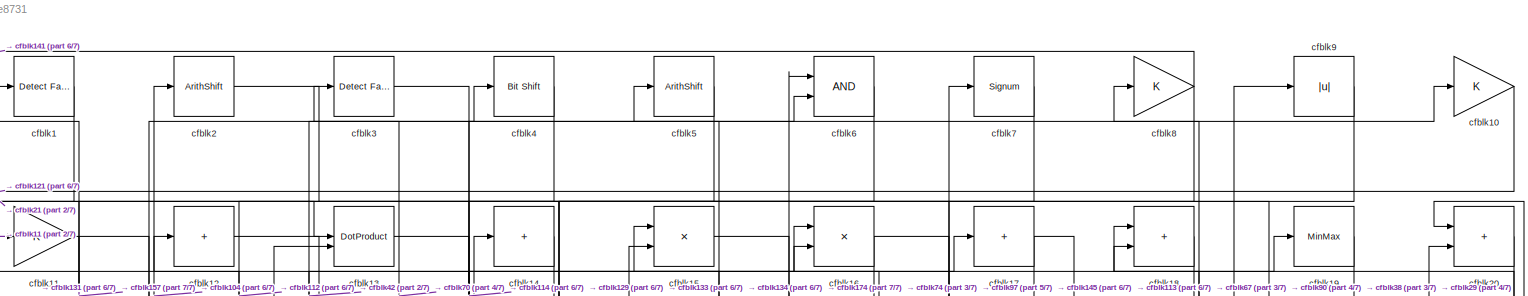
[diagram: root canvas - part 1/7, full width, top band]
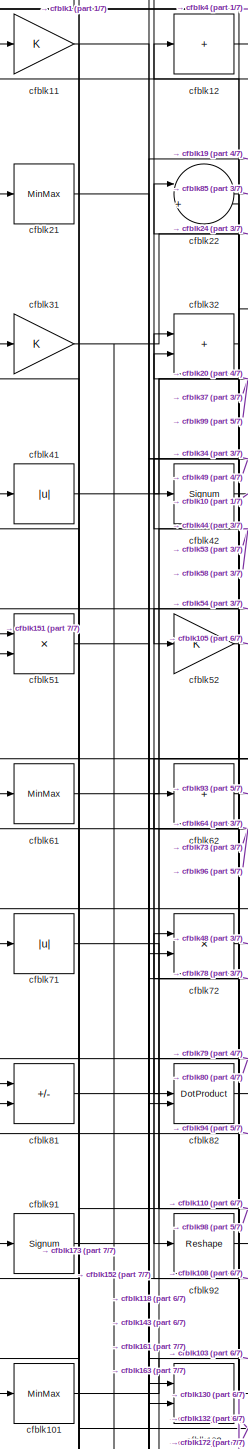
[diagram: root canvas - part 2/7, middle left region]
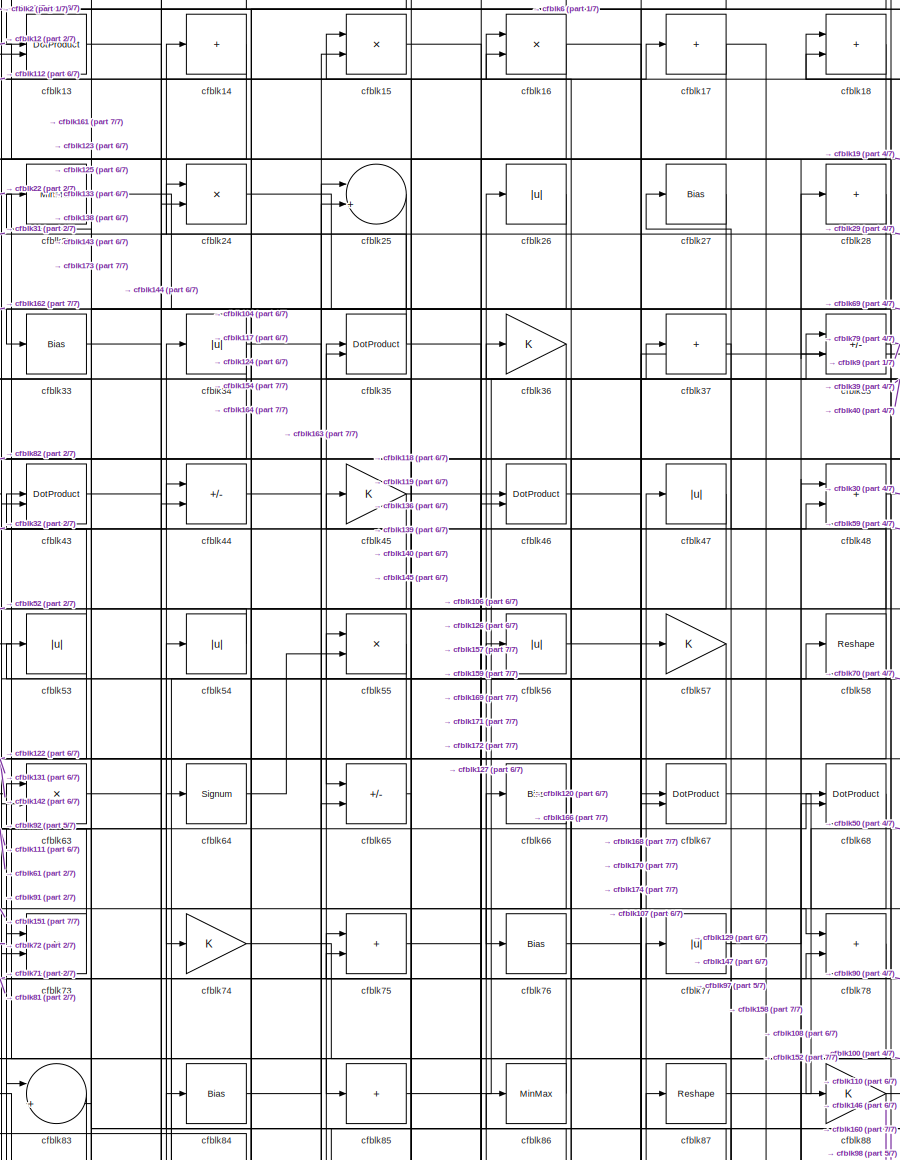
[diagram: root canvas - part 3/7, top center region]
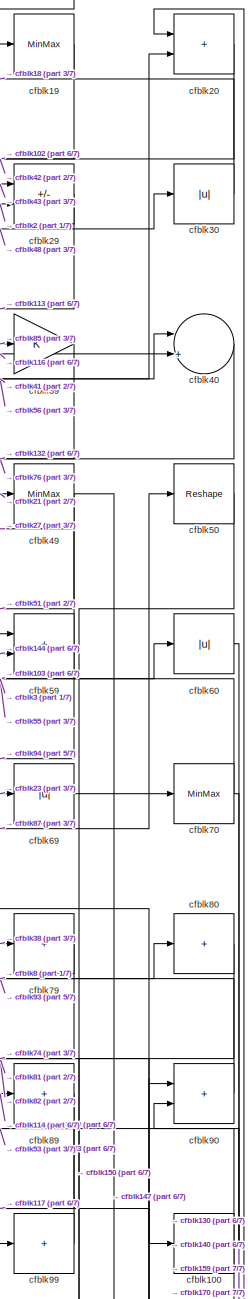
[diagram: root canvas - part 4/7, top right region]
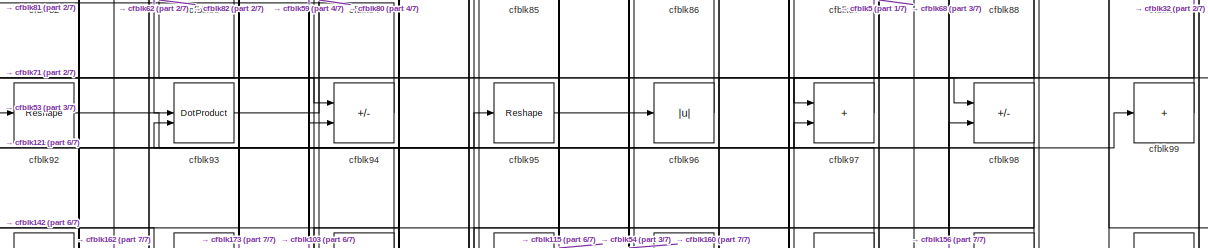
[diagram: root canvas - part 5/7, full width, middle band]
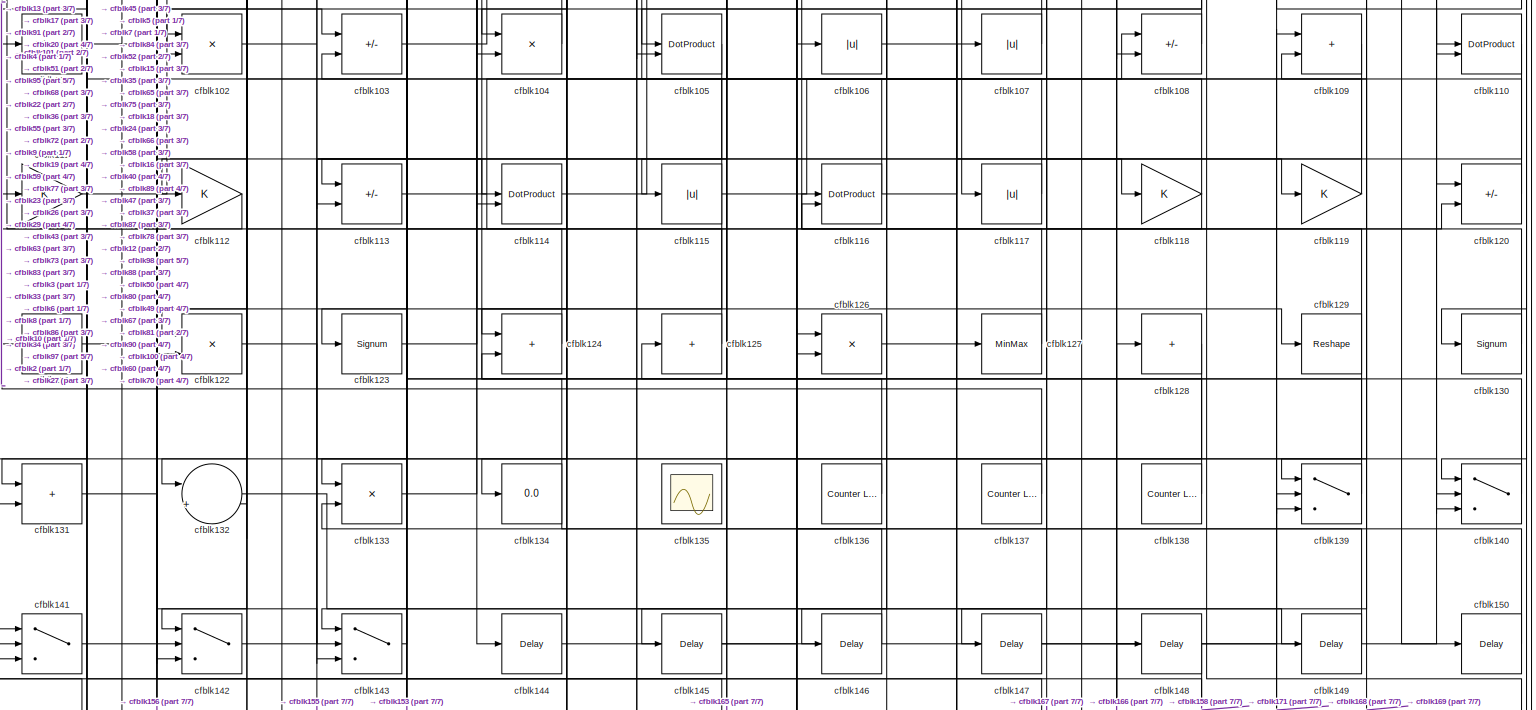
[diagram: root canvas - part 6/7, full width, bottom band]
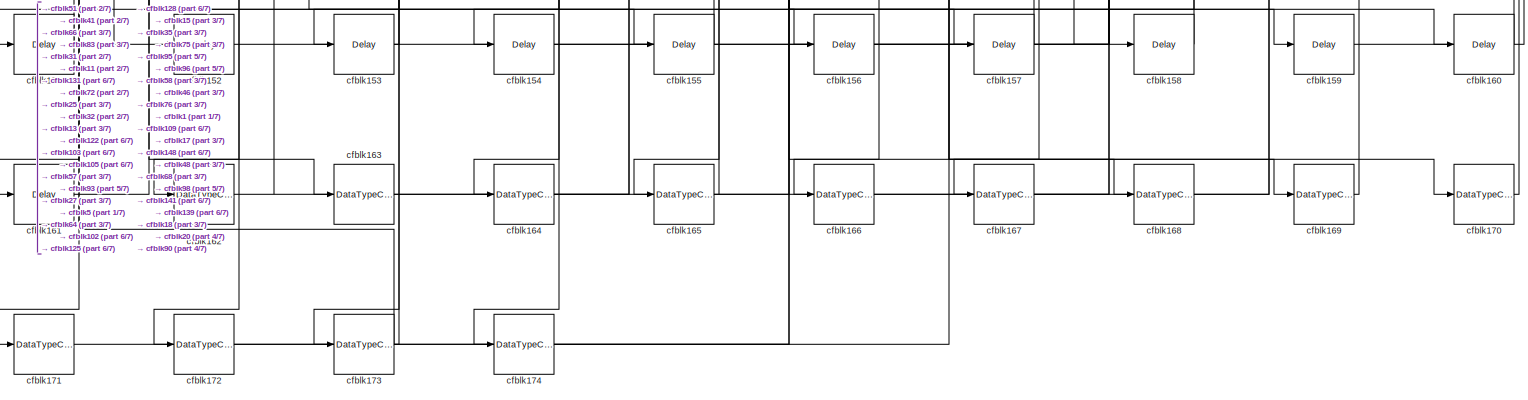
[diagram: root canvas - part 7/7, full width, bottom band]
MODEL slx_33aa2c3e8731
KIND model
CONFIG AbsTol = auto
CONFIG EnableMultiTasking = off
CONFIG FixedStep = auto
CONFIG MaxStep = auto
CONFIG MinStep = auto
CONFIG RelTol = 1e-3
CONFIG SampleTimeConstraint = Unconstrained
CONFIG SolverName = VariableStepAuto
CONFIG StartTime = 0.0
CONFIG StopTime = 10.0
BLOCK [Reference] cfblk1  REF=hdlsllib/Logic and Bit
Operations/Detect Fall
Negative
  SourceBlock = hdlsllib/Logic and Bit\nOperations/Detect Fall\nNegative
  SourceType = Detect Fall Negative
BLOCK [Gain] cfblk10
  OutDataTypeStr = uint8
BLOCK [Sum] cfblk100
  IconShape = rectangular
  Inputs = +
  OutDataTypeStr = uint8
BLOCK [MinMax] cfblk101
  OutDataTypeStr = uint8
BLOCK [Product] cfblk102
  Inputs = */
  OutDataTypeStr = uint8
  RndMeth = Zero
  SaturateOnIntegerOverflow = on
BLOCK [Sum] cfblk103
  IconShape = rectangular
  Inputs = +-
  OutDataTypeStr = uint8
BLOCK [Product] cfblk104
  Inputs = */
  OutDataTypeStr = uint8
  RndMeth = Zero
  SaturateOnIntegerOverflow = on
BLOCK [DotProduct] cfblk105
  OutDataTypeStr = uint8
BLOCK [Abs] cfblk106
  OutDataTypeStr = uint8
  SaturateOnIntegerOverflow = off
BLOCK [Abs] cfblk107
  OutDataTypeStr = uint8
  SaturateOnIntegerOverflow = off
BLOCK [Sum] cfblk108
  IconShape = rectangular
  Inputs = +-
  OutDataTypeStr = uint8
BLOCK [Sum] cfblk109
  IconShape = rectangular
  OutDataTypeStr = uint8
BLOCK [Gain] cfblk11
  OutDataTypeStr = uint8
BLOCK [DotProduct] cfblk110
  OutDataTypeStr = uint8
BLOCK [Gain] cfblk111
  OutDataTypeStr = uint8
BLOCK [Gain] cfblk112
  OutDataTypeStr = uint8
BLOCK [Sum] cfblk113
  IconShape = rectangular
  Inputs = +-
  OutDataTypeStr = uint8
BLOCK [DotProduct] cfblk114
  OutDataTypeStr = uint8
BLOCK [Abs] cfblk115
  OutDataTypeStr = uint8
  SaturateOnIntegerOverflow = off
BLOCK [DotProduct] cfblk116
  OutDataTypeStr = uint8
BLOCK [Abs] cfblk117
  OutDataTypeStr = uint8
  SaturateOnIntegerOverflow = off
BLOCK [Gain] cfblk118
  OutDataTypeStr = uint8
BLOCK [Gain] cfblk119
  OutDataTypeStr = uint8
BLOCK [Sum] cfblk12
  IconShape = rectangular
  Inputs = +
  OutDataTypeStr = uint8
BLOCK [Sum] cfblk120
  IconShape = rectangular
  Inputs = +-
  OutDataTypeStr = uint8
BLOCK [Sum] cfblk121
  IconShape = rectangular
  Inputs = +
  OutDataTypeStr = uint8
BLOCK [Product] cfblk122
  Inputs = */
  OutDataTypeStr = uint8
  RndMeth = Zero
  SaturateOnIntegerOverflow = on
BLOCK [Signum] cfblk123
BLOCK [Sum] cfblk124
  IconShape = rectangular
  OutDataTypeStr = uint8
BLOCK [Sum] cfblk125
  IconShape = rectangular
  Inputs = +
  OutDataTypeStr = uint8
BLOCK [Product] cfblk126
  Inputs = */
  OutDataTypeStr = uint8
  RndMeth = Zero
  SaturateOnIntegerOverflow = on
BLOCK [MinMax] cfblk127
  OutDataTypeStr = uint8
BLOCK [Sum] cfblk128
  IconShape = rectangular
  Inputs = +
  OutDataTypeStr = uint8
BLOCK [Reshape] cfblk129
BLOCK [DotProduct] cfblk13
  OutDataTypeStr = uint8
BLOCK [Signum] cfblk130
BLOCK [Sum] cfblk131
  IconShape = rectangular
  OutDataTypeStr = uint8
BLOCK [Sum] cfblk132
  Inputs = |++
  OutDataTypeStr = uint8
BLOCK [Product] cfblk133
  Inputs = */
  OutDataTypeStr = uint8
  RndMeth = Zero
  SaturateOnIntegerOverflow = on
BLOCK [Display] cfblk134
  Decimation = 1
BLOCK [Scope] cfblk135
  Floating = on
  NumInputPorts = 1
  ScopeSpecificationString = Simulink.scopes.TimeScopeBlockCfg('CurrentConfiguration', extmgr.ConfigurationSet(extmgr.Configuration('Core','General UI',true,'FigureColor',[0.156862745098039 0.156862745098039 0.156862745098039]),extmgr.Configuration('Core','Source UI',true),extmgr.Configuration('Sources','WiredSimulink',true,'DataLoggingVariableName','ScopeData1','DataLoggingSaveFormat','StructureWithTime','DataLoggingLimitDat...<+2713ch>
BLOCK [Reference] cfblk136  REF=hdlsllib/Sources/Counter
Limited
  SourceBlock = hdlsllib/Sources/Counter\nLimited
  SourceType = Counter Limited
BLOCK [Reference] cfblk137  REF=hdlsllib/Sources/Counter
Limited
  SourceBlock = hdlsllib/Sources/Counter\nLimited
  SourceType = Counter Limited
BLOCK [Reference] cfblk138  REF=hdlsllib/Sources/Counter
Limited
  SourceBlock = hdlsllib/Sources/Counter\nLimited
  SourceType = Counter Limited
BLOCK [Switch] cfblk139
  InputSameDT = off
  OutDataTypeStr = uint8
  SaturateOnIntegerOverflow = off
BLOCK [Sum] cfblk14
  IconShape = rectangular
  Inputs = +
  OutDataTypeStr = uint8
BLOCK [Switch] cfblk140
  InputSameDT = off
  OutDataTypeStr = uint8
  SaturateOnIntegerOverflow = off
BLOCK [Switch] cfblk141
  InputSameDT = off
  OutDataTypeStr = uint8
  SaturateOnIntegerOverflow = off
BLOCK [Switch] cfblk142
  InputSameDT = off
  OutDataTypeStr = uint8
  SaturateOnIntegerOverflow = off
BLOCK [Switch] cfblk143
  InputSameDT = off
  OutDataTypeStr = uint8
  SaturateOnIntegerOverflow = off
BLOCK [Delay] cfblk144
  InputPortMap = u0
  SampleTime = 1
BLOCK [Delay] cfblk145
  InputPortMap = u0
  SampleTime = 1
BLOCK [Delay] cfblk146
  InputPortMap = u0
  SampleTime = 1
BLOCK [Delay] cfblk147
  InputPortMap = u0
  SampleTime = 1
BLOCK [Delay] cfblk148
  InputPortMap = u0
  SampleTime = 1
BLOCK [Delay] cfblk149
  InputPortMap = u0
  SampleTime = 1
BLOCK [Product] cfblk15
  Inputs = */
  OutDataTypeStr = uint8
  RndMeth = Zero
  SaturateOnIntegerOverflow = on
BLOCK [Delay] cfblk150
  InputPortMap = u0
  SampleTime = 1
BLOCK [Delay] cfblk151
  InputPortMap = u0
  SampleTime = 1
BLOCK [Delay] cfblk152
  InputPortMap = u0
  SampleTime = 1
BLOCK [Delay] cfblk153
  InputPortMap = u0
  SampleTime = 1
BLOCK [Delay] cfblk154
  InputPortMap = u0
  SampleTime = 1
BLOCK [Delay] cfblk155
  InputPortMap = u0
  SampleTime = 1
BLOCK [Delay] cfblk156
  InputPortMap = u0
  SampleTime = 1
BLOCK [Delay] cfblk157
  InputPortMap = u0
  SampleTime = 1
BLOCK [Delay] cfblk158
  InputPortMap = u0
  SampleTime = 1
BLOCK [Delay] cfblk159
  InputPortMap = u0
  SampleTime = 1
BLOCK [Product] cfblk16
  Inputs = */
  OutDataTypeStr = uint8
  RndMeth = Zero
  SaturateOnIntegerOverflow = on
BLOCK [Delay] cfblk160
  InputPortMap = u0
  SampleTime = 1
BLOCK [Delay] cfblk161
  InputPortMap = u0
  SampleTime = 1
BLOCK [DataTypeConversion] cfblk162
  OutDataTypeStr = uint8
  RndMeth = Floor
  SaturateOnIntegerOverflow = off
BLOCK [DataTypeConversion] cfblk163
  OutDataTypeStr = uint8
  RndMeth = Floor
  SaturateOnIntegerOverflow = off
BLOCK [DataTypeConversion] cfblk164
  OutDataTypeStr = uint8
  RndMeth = Floor
  SaturateOnIntegerOverflow = off
BLOCK [DataTypeConversion] cfblk165
  OutDataTypeStr = uint8
  RndMeth = Floor
  SaturateOnIntegerOverflow = off
BLOCK [DataTypeConversion] cfblk166
  OutDataTypeStr = uint8
  RndMeth = Floor
  SaturateOnIntegerOverflow = off
BLOCK [DataTypeConversion] cfblk167
  OutDataTypeStr = uint8
  RndMeth = Floor
  SaturateOnIntegerOverflow = off
BLOCK [DataTypeConversion] cfblk168
  OutDataTypeStr = uint8
  RndMeth = Floor
  SaturateOnIntegerOverflow = off
BLOCK [DataTypeConversion] cfblk169
  OutDataTypeStr = uint8
  RndMeth = Floor
  SaturateOnIntegerOverflow = off
BLOCK [Sum] cfblk17
  IconShape = rectangular
  Inputs = +
  OutDataTypeStr = uint8
BLOCK [DataTypeConversion] cfblk170
  OutDataTypeStr = uint8
  RndMeth = Floor
  SaturateOnIntegerOverflow = off
BLOCK [DataTypeConversion] cfblk171
  OutDataTypeStr = uint8
  RndMeth = Floor
  SaturateOnIntegerOverflow = off
BLOCK [DataTypeConversion] cfblk172
  OutDataTypeStr = uint8
  RndMeth = Floor
  SaturateOnIntegerOverflow = off
BLOCK [DataTypeConversion] cfblk173
  OutDataTypeStr = uint8
  RndMeth = Floor
  SaturateOnIntegerOverflow = off
BLOCK [DataTypeConversion] cfblk174
  OutDataTypeStr = uint8
  RndMeth = Floor
  SaturateOnIntegerOverflow = off
BLOCK [Sum] cfblk18
  IconShape = rectangular
  OutDataTypeStr = uint8
BLOCK [MinMax] cfblk19
  OutDataTypeStr = uint8
BLOCK [ArithShift] cfblk2
  BitShiftNumber = 8
  InputPortMap = u0
BLOCK [Sum] cfblk20
  IconShape = rectangular
  OutDataTypeStr = uint8
BLOCK [MinMax] cfblk21
  OutDataTypeStr = uint8
BLOCK [Sum] cfblk22
  Inputs = |++
  OutDataTypeStr = uint8
BLOCK [MinMax] cfblk23
  OutDataTypeStr = uint8
BLOCK [Product] cfblk24
  Inputs = */
  OutDataTypeStr = uint8
  RndMeth = Zero
  SaturateOnIntegerOverflow = on
BLOCK [Sum] cfblk25
  Inputs = |++
  OutDataTypeStr = uint8
BLOCK [Abs] cfblk26
  OutDataTypeStr = uint8
  SaturateOnIntegerOverflow = off
BLOCK [Bias] cfblk27
  Bias = 0.0
  SaturateOnIntegerOverflow = off
BLOCK [Sum] cfblk28
  IconShape = rectangular
  Inputs = +
  OutDataTypeStr = uint8
BLOCK [Sum] cfblk29
  IconShape = rectangular
  Inputs = +-
  OutDataTypeStr = uint8
BLOCK [Reference] cfblk3  REF=hdlsllib/Logic and Bit
Operations/Detect Fall
Negative
  SourceBlock = hdlsllib/Logic and Bit\nOperations/Detect Fall\nNegative
  SourceType = Detect Fall Negative
BLOCK [Abs] cfblk30
  OutDataTypeStr = uint8
  SaturateOnIntegerOverflow = off
BLOCK [Gain] cfblk31
  OutDataTypeStr = uint8
BLOCK [Sum] cfblk32
  IconShape = rectangular
  OutDataTypeStr = uint8
BLOCK [Bias] cfblk33
  Bias = 0.0
  SaturateOnIntegerOverflow = off
BLOCK [Abs] cfblk34
  OutDataTypeStr = uint8
  SaturateOnIntegerOverflow = off
BLOCK [DotProduct] cfblk35
  OutDataTypeStr = uint8
BLOCK [Gain] cfblk36
  OutDataTypeStr = uint8
BLOCK [Sum] cfblk37
  IconShape = rectangular
  Inputs = +
  OutDataTypeStr = uint8
BLOCK [Sum] cfblk38
  IconShape = rectangular
  Inputs = +-
  OutDataTypeStr = uint8
BLOCK [Gain] cfblk39
  OutDataTypeStr = uint8
BLOCK [Reference] cfblk4  REF=hdlsllib/Logic and Bit
Operations/Bit Shift
  SourceBlock = hdlsllib/Logic and Bit\nOperations/Bit Shift
  SourceType = Bit Shift
BLOCK [Sum] cfblk40
  Inputs = |++
  OutDataTypeStr = uint8
BLOCK [Abs] cfblk41
  OutDataTypeStr = uint8
  SaturateOnIntegerOverflow = off
BLOCK [Signum] cfblk42
BLOCK [DotProduct] cfblk43
  OutDataTypeStr = uint8
BLOCK [Sum] cfblk44
  IconShape = rectangular
  Inputs = +-
  OutDataTypeStr = uint8
BLOCK [Gain] cfblk45
  OutDataTypeStr = uint8
BLOCK [DotProduct] cfblk46
  OutDataTypeStr = uint8
BLOCK [Abs] cfblk47
  OutDataTypeStr = uint8
  SaturateOnIntegerOverflow = off
BLOCK [Sum] cfblk48
  IconShape = rectangular
  OutDataTypeStr = uint8
BLOCK [MinMax] cfblk49
  OutDataTypeStr = uint8
BLOCK [ArithShift] cfblk5
  BitShiftNumber = 8
  InputPortMap = u0
BLOCK [Reshape] cfblk50
BLOCK [Product] cfblk51
  Inputs = */
  OutDataTypeStr = uint8
  RndMeth = Zero
  SaturateOnIntegerOverflow = on
BLOCK [Gain] cfblk52
  OutDataTypeStr = uint8
BLOCK [Abs] cfblk53
  OutDataTypeStr = uint8
  SaturateOnIntegerOverflow = off
BLOCK [Abs] cfblk54
  OutDataTypeStr = uint8
  SaturateOnIntegerOverflow = off
BLOCK [Product] cfblk55
  Inputs = */
  OutDataTypeStr = uint8
  RndMeth = Zero
  SaturateOnIntegerOverflow = on
BLOCK [Abs] cfblk56
  OutDataTypeStr = uint8
  SaturateOnIntegerOverflow = off
BLOCK [Gain] cfblk57
  OutDataTypeStr = uint8
BLOCK [Reshape] cfblk58
BLOCK [Sum] cfblk59
  IconShape = rectangular
  OutDataTypeStr = uint8
BLOCK [Logic] cfblk6
  AllPortsSameDT = off
  OutDataTypeStr = boolean
BLOCK [Abs] cfblk60
  OutDataTypeStr = uint8
  SaturateOnIntegerOverflow = off
BLOCK [MinMax] cfblk61
  OutDataTypeStr = uint8
BLOCK [Sum] cfblk62
  IconShape = rectangular
  Inputs = +
  OutDataTypeStr = uint8
BLOCK [Product] cfblk63
  Inputs = */
  OutDataTypeStr = uint8
  RndMeth = Zero
  SaturateOnIntegerOverflow = on
BLOCK [Signum] cfblk64
BLOCK [Sum] cfblk65
  IconShape = rectangular
  Inputs = +-
  OutDataTypeStr = uint8
BLOCK [Bias] cfblk66
  Bias = 0.0
  SaturateOnIntegerOverflow = off
BLOCK [DotProduct] cfblk67
  OutDataTypeStr = uint8
BLOCK [DotProduct] cfblk68
  OutDataTypeStr = uint8
BLOCK [Abs] cfblk69
  OutDataTypeStr = uint8
  SaturateOnIntegerOverflow = off
BLOCK [Signum] cfblk7
BLOCK [MinMax] cfblk70
  OutDataTypeStr = uint8
BLOCK [Abs] cfblk71
  OutDataTypeStr = uint8
  SaturateOnIntegerOverflow = off
BLOCK [Product] cfblk72
  Inputs = */
  OutDataTypeStr = uint8
  RndMeth = Zero
  SaturateOnIntegerOverflow = on
BLOCK [Product] cfblk73
  Inputs = */
  OutDataTypeStr = uint8
  RndMeth = Zero
  SaturateOnIntegerOverflow = on
BLOCK [Gain] cfblk74
  OutDataTypeStr = uint8
BLOCK [Sum] cfblk75
  IconShape = rectangular
  OutDataTypeStr = uint8
BLOCK [Bias] cfblk76
  Bias = 0.0
  SaturateOnIntegerOverflow = off
BLOCK [Abs] cfblk77
  OutDataTypeStr = uint8
  SaturateOnIntegerOverflow = off
BLOCK [Sum] cfblk78
  IconShape = rectangular
  OutDataTypeStr = uint8
BLOCK [Sum] cfblk79
  IconShape = rectangular
  Inputs = +
  OutDataTypeStr = uint8
BLOCK [Gain] cfblk8
  OutDataTypeStr = uint8
BLOCK [Sum] cfblk80
  IconShape = rectangular
  Inputs = +
  OutDataTypeStr = uint8
BLOCK [Sum] cfblk81
  IconShape = rectangular
  Inputs = +-
  OutDataTypeStr = uint8
BLOCK [DotProduct] cfblk82
  OutDataTypeStr = uint8
BLOCK [Sum] cfblk83
  Inputs = |++
  OutDataTypeStr = uint8
BLOCK [Bias] cfblk84
  Bias = 0.0
  SaturateOnIntegerOverflow = off
BLOCK [Sum] cfblk85
  IconShape = rectangular
  Inputs = +
  OutDataTypeStr = uint8
BLOCK [MinMax] cfblk86
  OutDataTypeStr = uint8
BLOCK [Reshape] cfblk87
BLOCK [Gain] cfblk88
  OutDataTypeStr = uint8
BLOCK [Sum] cfblk89
  IconShape = rectangular
  Inputs = +
  OutDataTypeStr = uint8
BLOCK [Abs] cfblk9
  OutDataTypeStr = uint8
  SaturateOnIntegerOverflow = off
BLOCK [Sum] cfblk90
  IconShape = rectangular
  OutDataTypeStr = uint8
BLOCK [Signum] cfblk91
BLOCK [Reshape] cfblk92
BLOCK [DotProduct] cfblk93
  OutDataTypeStr = uint8
BLOCK [Sum] cfblk94
  IconShape = rectangular
  Inputs = +-
  OutDataTypeStr = uint8
BLOCK [Reshape] cfblk95
BLOCK [Abs] cfblk96
  OutDataTypeStr = uint8
  SaturateOnIntegerOverflow = off
BLOCK [Sum] cfblk97
  IconShape = rectangular
  OutDataTypeStr = uint8
BLOCK [Sum] cfblk98
  IconShape = rectangular
  Inputs = +-
  OutDataTypeStr = uint8
BLOCK [Sum] cfblk99
  IconShape = rectangular
  Inputs = +
  OutDataTypeStr = uint8
NET cfblk100:1 -> cfblk140:3, cfblk53:1
LINE cfblk101:1 -> cfblk103:1
NET cfblk102:1 -> cfblk114:1, cfblk140:2, cfblk19:1, cfblk59:1
NET cfblk103:1 -> cfblk60:1, cfblk97:2
LINE cfblk104:1 -> cfblk2:1
NET cfblk105:1 -> cfblk143:2, cfblk153:1
LINE cfblk106:1 -> cfblk127:1
LINE cfblk107:1 -> cfblk47:1
NET cfblk108:1 -> cfblk105:1, cfblk12:1
LINE cfblk109:1 -> cfblk167:1
LINE cfblk10:1 -> cfblk121:1
LINE cfblk110:1 -> cfblk113:2
LINE cfblk111:1 -> cfblk68:1
LINE cfblk112:1 -> cfblk17:1
NET cfblk113:1 -> cfblk120:2, cfblk7:1
LINE cfblk114:1 -> cfblk89:1
NET cfblk115:1 -> cfblk108:1, cfblk122:2, cfblk91:1
NET cfblk116:1 -> cfblk22:1, cfblk40:2
LINE cfblk117:1 -> cfblk84:1
NET cfblk118:1 -> cfblk116:2, cfblk35:1, cfblk75:2
LINE cfblk119:1 -> cfblk35:2
NET cfblk11:1 -> cfblk101:1, cfblk163:1
LINE cfblk120:1 -> cfblk36:1
LINE cfblk121:1 -> cfblk95:1
LINE cfblk122:1 -> cfblk155:1
LINE cfblk123:1 -> cfblk86:1
LINE cfblk124:1 -> cfblk111:1
LINE cfblk125:1 -> cfblk63:1
LINE cfblk126:1 -> cfblk107:1
LINE cfblk127:1 -> cfblk66:1
LINE cfblk128:1 -> cfblk165:1
NET cfblk129:1 -> cfblk141:3, cfblk87:1
LINE cfblk12:1 -> cfblk24:2
NET cfblk130:1 -> cfblk116:1, cfblk72:1
LINE cfblk131:1 -> cfblk156:1
LINE cfblk132:1 -> cfblk149:1
NET cfblk133:1 -> cfblk43:1, cfblk6:2
NET cfblk136:1 -> cfblk45:1, cfblk83:2
LINE cfblk137:1 -> cfblk13:1
LINE cfblk138:1 -> cfblk23:1
NET cfblk139:1 -> cfblk34:1, cfblk75:1
LINE cfblk13:1 -> cfblk104:2
LINE cfblk140:1 -> cfblk15:1
LINE cfblk141:1 -> cfblk4:1
LINE cfblk142:1 -> cfblk77:1
LINE cfblk143:1 -> cfblk73:1
LINE cfblk144:1 -> cfblk59:2
LINE cfblk145:1 -> cfblk6:1
LINE cfblk146:1 -> cfblk124:2
LINE cfblk147:1 -> cfblk90:1
LINE cfblk148:1 -> cfblk171:1
LINE cfblk149:1 -> cfblk133:2
NET cfblk14:1 -> cfblk43:2, cfblk73:2
LINE cfblk150:1 -> cfblk126:1
LINE cfblk151:1 -> cfblk51:1
LINE cfblk152:1 -> cfblk68:2
LINE cfblk153:1 -> cfblk103:2
LINE cfblk154:1 -> cfblk48:1
LINE cfblk155:1 -> cfblk102:1
LINE cfblk156:1 -> cfblk98:2
LINE cfblk157:1 -> cfblk1:1
LINE cfblk158:1 -> cfblk141:1
LINE cfblk159:1 -> cfblk20:1
LINE cfblk15:1 -> cfblk157:1
LINE cfblk160:1 -> cfblk18:2
LINE cfblk161:1 -> cfblk72:2
NET cfblk162:1 -> cfblk13:2, cfblk96:1
LINE cfblk163:1 -> cfblk25:1
LINE cfblk164:1 -> cfblk25:2
NET cfblk165:1 -> cfblk125:1, cfblk139:2, cfblk139:3
LINE cfblk166:1 -> cfblk128:1
LINE cfblk167:1 -> cfblk148:1
LINE cfblk168:1 -> cfblk109:1
LINE cfblk169:1 -> cfblk109:2
NET cfblk16:1 -> cfblk119:1, cfblk65:1, cfblk88:1
LINE cfblk170:1 -> cfblk90:2
LINE cfblk171:1 -> cfblk46:1
LINE cfblk172:1 -> cfblk46:2
NET cfblk173:1 -> cfblk41:1, cfblk93:2
LINE cfblk174:1 -> cfblk57:1
NET cfblk17:1 -> cfblk158:1, cfblk63:2
LINE cfblk18:1 -> cfblk126:2
NET cfblk19:1 -> cfblk38:2, cfblk42:1
LINE cfblk1:1 -> cfblk11:1
LINE cfblk20:1 -> cfblk102:2
LINE cfblk21:1 -> cfblk49:1
LINE cfblk22:1 -> cfblk85:1
LINE cfblk23:1 -> cfblk69:1
LINE cfblk24:1 -> cfblk106:1
LINE cfblk25:1 -> cfblk162:1
LINE cfblk26:1 -> cfblk133:1
NET cfblk27:1 -> cfblk123:1, cfblk164:1
LINE cfblk28:1 -> cfblk33:1
LINE cfblk29:1 -> cfblk113:1
NET cfblk2:1 -> cfblk29:2, cfblk67:1
LINE cfblk30:1 -> cfblk18:1
NET cfblk31:1 -> cfblk152:1, cfblk24:1
LINE cfblk32:1 -> cfblk172:1
LINE cfblk33:1 -> cfblk144:1
NET cfblk34:1 -> cfblk78:1, cfblk82:2
NET cfblk35:1 -> cfblk14:1, cfblk169:1
LINE cfblk36:1 -> cfblk142:1
LINE cfblk37:1 -> cfblk147:1
NET cfblk38:1 -> cfblk79:1, cfblk9:1
LINE cfblk39:1 -> cfblk76:1
LINE cfblk3:1 -> cfblk129:1
LINE cfblk40:1 -> cfblk132:1
LINE cfblk41:1 -> cfblk20:2
LINE cfblk42:1 -> cfblk10:1
LINE cfblk43:1 -> cfblk29:1
LINE cfblk44:1 -> cfblk15:2
NET cfblk45:1 -> cfblk104:1, cfblk67:2
LINE cfblk46:1 -> cfblk170:1
LINE cfblk47:1 -> cfblk124:1
NET cfblk48:1 -> cfblk30:1, cfblk83:1
NET cfblk49:1 -> cfblk150:1, cfblk51:2
LINE cfblk4:1 -> cfblk21:1
LINE cfblk50:1 -> cfblk139:1
NET cfblk51:1 -> cfblk143:3, cfblk31:1, cfblk71:1
LINE cfblk52:1 -> cfblk105:2
NET cfblk53:1 -> cfblk32:2, cfblk92:1
LINE cfblk54:1 -> cfblk52:1
NET cfblk55:1 -> cfblk122:1, cfblk131:2
NET cfblk56:1 -> cfblk16:1, cfblk40:1
LINE cfblk57:1 -> cfblk173:1
NET cfblk58:1 -> cfblk142:2, cfblk166:1, cfblk22:2
NET cfblk59:1 -> cfblk27:1, cfblk94:2
NET cfblk5:1 -> cfblk131:1, cfblk174:1
LINE cfblk60:1 -> cfblk130:1
LINE cfblk61:1 -> cfblk37:1
LINE cfblk62:1 -> cfblk93:1
LINE cfblk63:1 -> cfblk16:2
NET cfblk64:1 -> cfblk154:1, cfblk55:2
LINE cfblk65:1 -> cfblk145:1
LINE cfblk66:1 -> cfblk151:1
LINE cfblk67:1 -> cfblk120:1
LINE cfblk68:1 -> cfblk97:1
LINE cfblk69:1 -> cfblk70:1
LINE cfblk6:1 -> cfblk74:1
NET cfblk70:1 -> cfblk140:1, cfblk3:1, cfblk55:1
NET cfblk71:1 -> cfblk78:2, cfblk98:1
NET cfblk72:1 -> cfblk132:2, cfblk48:2
LINE cfblk73:1 -> cfblk61:1
LINE cfblk74:1 -> cfblk100:1
LINE cfblk75:1 -> cfblk159:1
LINE cfblk76:1 -> cfblk168:1
LINE cfblk77:1 -> cfblk28:1
LINE cfblk78:1 -> cfblk108:2
LINE cfblk79:1 -> cfblk81:1
LINE cfblk7:1 -> cfblk134:1
NET cfblk80:1 -> cfblk143:1, cfblk82:1
NET cfblk81:1 -> cfblk110:1, cfblk44:1, cfblk44:2
LINE cfblk82:1 -> cfblk94:1
LINE cfblk83:1 -> cfblk161:1
NET cfblk84:1 -> cfblk58:1, cfblk65:2
NET cfblk85:1 -> cfblk38:1, cfblk39:1
LINE cfblk86:1 -> cfblk26:1
LINE cfblk87:1 -> cfblk50:1
NET cfblk88:1 -> cfblk110:2, cfblk146:1
LINE cfblk89:1 -> cfblk117:1
NET cfblk8:1 -> cfblk114:2, cfblk141:2
NET cfblk90:1 -> cfblk56:1, cfblk8:1
NET cfblk91:1 -> cfblk118:1, cfblk64:1
LINE cfblk92:1 -> cfblk99:1
LINE cfblk93:1 -> cfblk80:1
LINE cfblk94:1 -> cfblk81:2
LINE cfblk95:1 -> cfblk160:1
LINE cfblk96:1 -> cfblk62:1
LINE cfblk97:1 -> cfblk5:1
NET cfblk98:1 -> cfblk115:1, cfblk142:3, cfblk54:1
LINE cfblk99:1 -> cfblk32:1
LINE cfblk9:1 -> cfblk112:1
note: NET lines group one-source signal fan-out (src -> all destinations, sorted); 1:1 wires keep LINE
